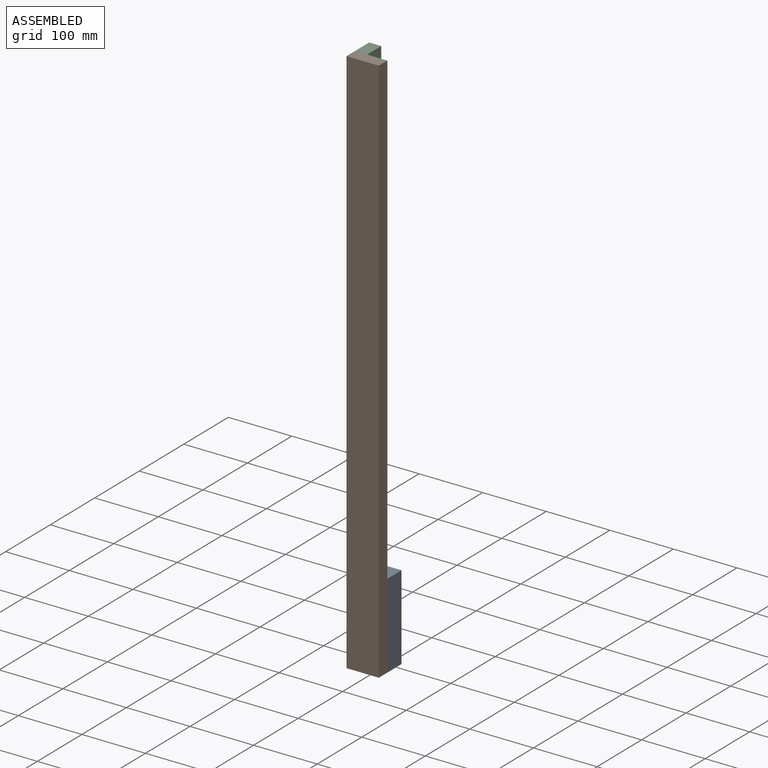
[diagram: assembled view]
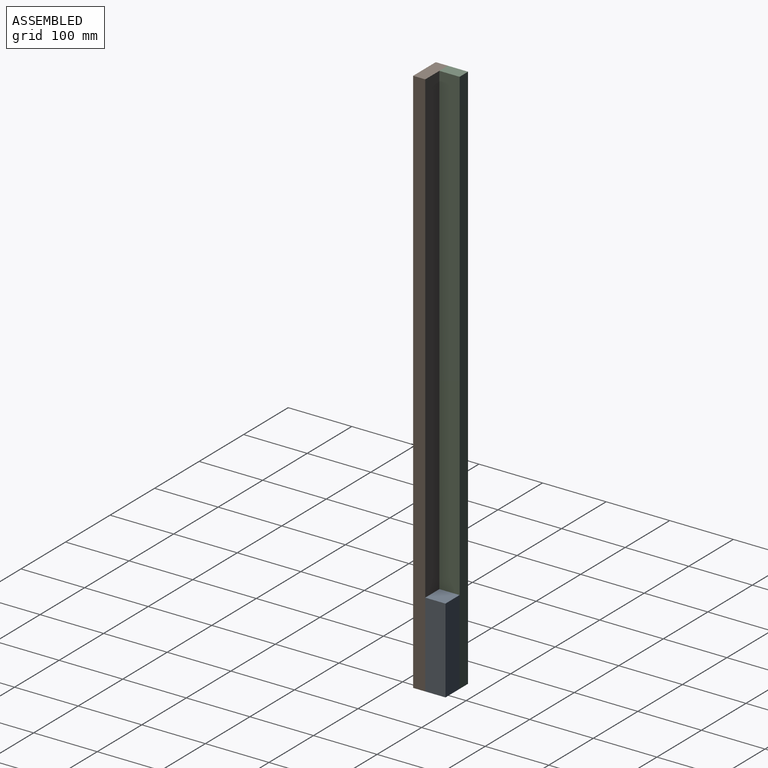
[diagram: assembled view, second angle]
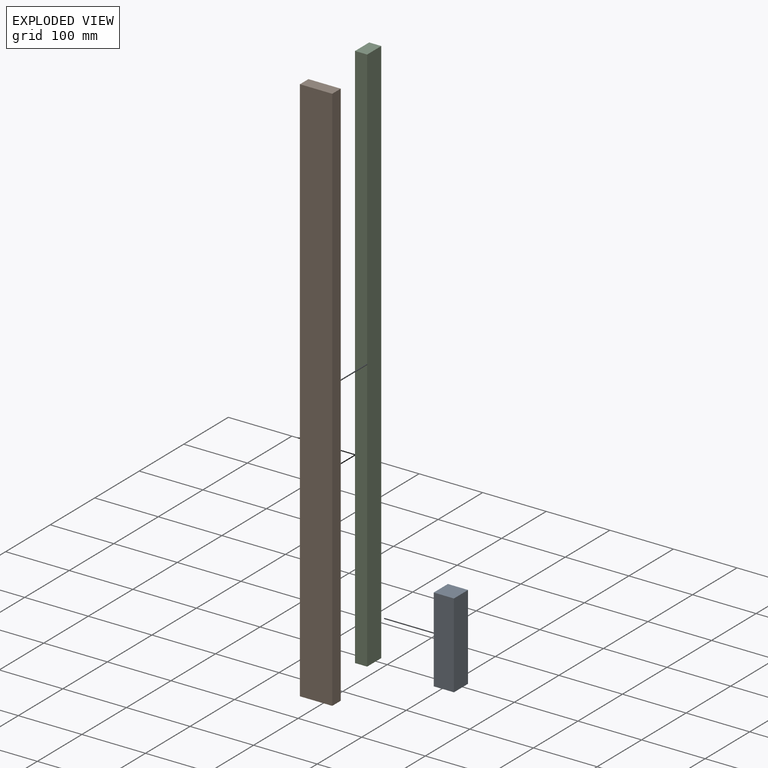
[diagram: exploded view]
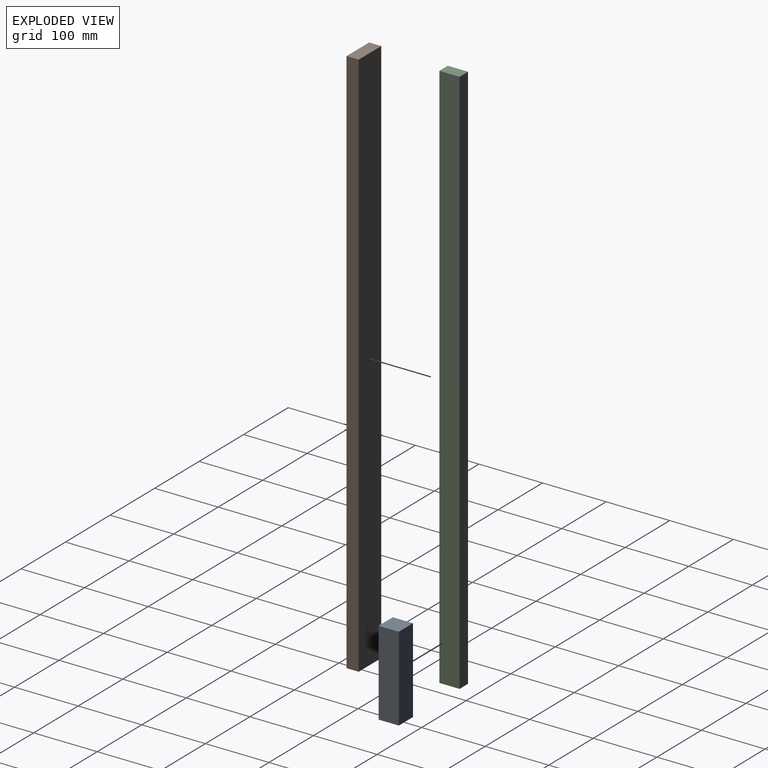
[diagram: exploded view, second angle]
ASSEMBLY  parts=3 mates=2
PART A: 6 faces, bbox 31.8x31.8x133.4 mm
  f0: plane 133.35x31.75mm, normal (-1,0,0), area 4233.9mm2, adj f1,f3,f4,f5
  f1: plane 133.35x31.75mm, normal (0,-1,0), area 4233.9mm2, adj f0,f2,f4,f5
  f2: plane 133.35x31.75mm, normal (1,0,0), area 4233.9mm2, adj f1,f3,f4,f5
  f3: plane 133.35x31.75mm, normal (0,1,0), area 4233.9mm2, adj f0,f2,f4,f5
  f4: plane 31.75x31.75mm, normal (0,0,1), area 1008.1mm2, adj f0,f1,f2,f3
  f5: plane 31.75x31.75mm, normal (0,0,-1), area 1008.1mm2, adj f0,f1,f2,f3
PART B: 6 faces, bbox 50.8x19.1x870 mm
  f0: plane 869.95x19.05mm, normal (1,0,0), area 16572.5mm2, adj f1,f3,f4,f5
  f1: plane 50.8x19.05mm, normal (0,0,1), area 967.7mm2, adj f0,f2,f4,f5
  f2: plane 869.95x19.05mm, normal (-1,0,0), area 16572.5mm2, adj f1,f3,f4,f5
  f3: plane 50.8x19.05mm, normal (0,0,-1), area 967.7mm2, adj f0,f2,f4,f5
  f4: plane 869.95x50.8mm, normal (0,-1,0), area 44193.5mm2, adj f0,f1,f2,f3
  f5: plane 869.95x50.8mm, normal (0,1,0), area 44193.5mm2, adj f0,f1,f2,f3
PART C: 6 faces, bbox 19.1x31.8x870 mm
  f0: plane 869.95x31.75mm, normal (1,0,0), area 27620.9mm2, adj f1,f3,f4,f5
  f1: plane 31.75x19.05mm, normal (0,0,-1), area 604.8mm2, adj f0,f2,f4,f5
  f2: plane 869.95x31.75mm, normal (-1,0,0), area 27620.9mm2, adj f1,f3,f4,f5
  f3: plane 31.75x19.05mm, normal (0,0,1), area 604.8mm2, adj f0,f2,f4,f5
  f4: plane 869.95x19.05mm, normal (0,1,0), area 16572.5mm2, adj f0,f1,f2,f3
  f5: plane 869.95x19.05mm, normal (0,-1,0), area 16572.5mm2, adj f0,f1,f2,f3
PLACE A rot(axis=(-1,0,0),180deg) t=(-469.64,-11.21,26.14)mm
PLACE B t=(-469.64,-42.96,-107.21)mm
PLACE C t=(-469.64,-42.96,-107.21)mm
MATE fastened A.f0 <-> C.f0  axis (-1,0,0) through (-501.39,-11.21,-107.21)mm
MATE fastened C.f5 <-> B.f5  axis (0,-1,0) through (-520.44,-42.96,762.74)mm
